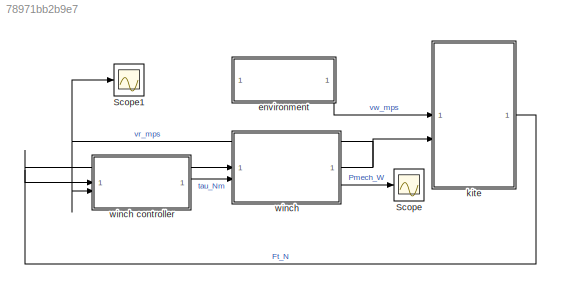
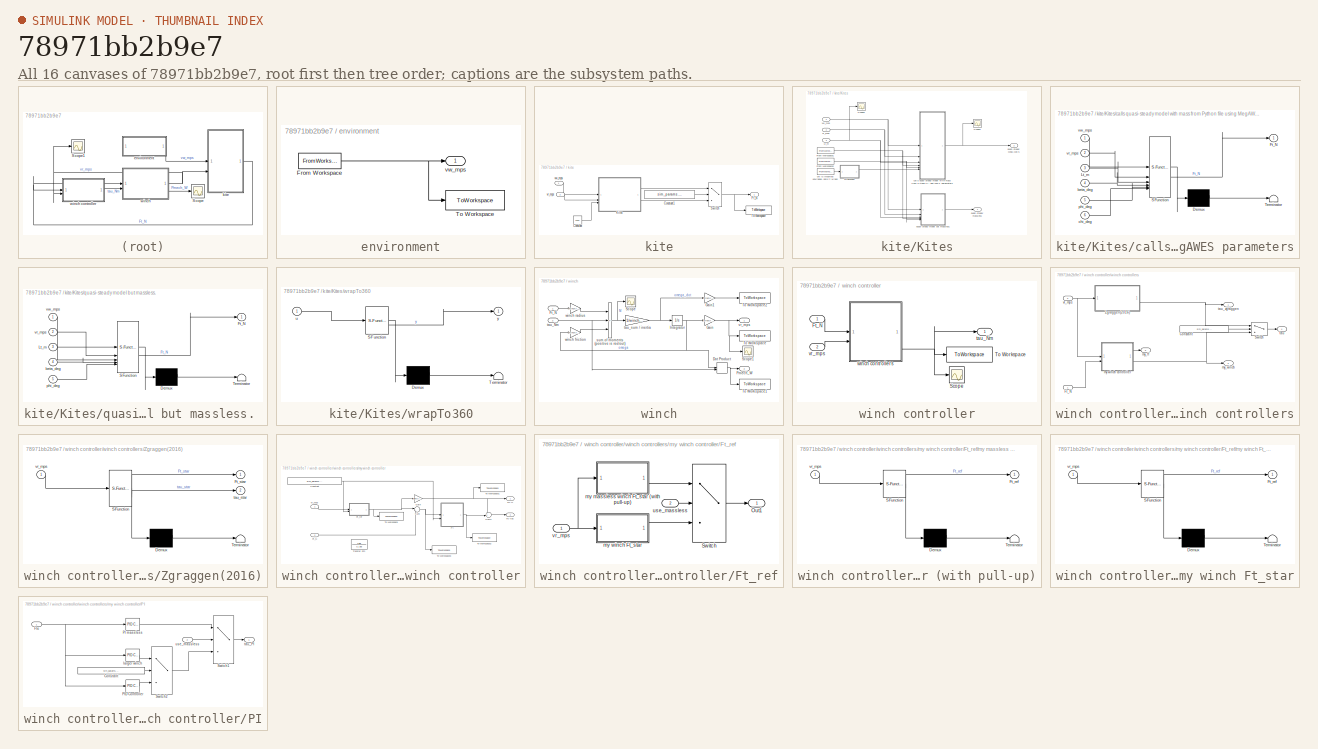
[diagram: thumbnail index - all 16 canvases of the model, root first then tree order]
MODEL slx_78971bb2b9e7
KIND model
CONFIG AbsTol = auto
CONFIG EnableMultiTasking = off
CONFIG FixedStep = auto
CONFIG MaxStep = auto
CONFIG MinStep = auto
CONFIG RelTol = 1e-4
CONFIG SampleTimeConstraint = Unconstrained
CONFIG SolverName = ode15s
CONFIG StartTime = 0.0
CONFIG StopTime = sim_params.t_end
BLOCK [Scope] Scope
  Floating = off
  NumInputPorts = 1
  ScopeSpecificationString = Simulink.scopes.TimeScopeBlockCfg('CurrentConfiguration', extmgr.ConfigurationSet(extmgr.Configuration('Core','General UI',true),extmgr.Configuration('Core','Source UI',true),extmgr.Configuration('Sources','WiredSimulink',true,'DataLoggingVariableName','ScopeData1'),extmgr.Configuration('Visuals','Time Domain',true),extmgr.Configuration('Tools','Plot Navigation',true),extmgr.Configuration('Tools',...<+40ch>
BLOCK [Scope] Scope1
  Floating = off
  NumInputPorts = 1
  ScopeSpecificationString = Simulink.scopes.TimeScopeBlockCfg('CurrentConfiguration', extmgr.ConfigurationSet(extmgr.Configuration('Core','General UI',true),extmgr.Configuration('Core','Source UI',true),extmgr.Configuration('Sources','WiredSimulink',true,'DataLoggingVariableName','ScopeData5'),extmgr.Configuration('Visuals','Time Domain',true,'SerializedDisplays',{struct('MinYLimReal','-8.84769','MaxYLimReal','4.62923','YLab...<+1409ch>
BLOCK [SubSystem] environment
BLOCK [FromWorkspace] environment/From Workspace
  VariableName = signals.vw_mps
BLOCK [ToWorkspace] environment/To Workspace
  FixptAsFi = on
  MaxDataPoints = inf
  SampleTime = -1
  SaveFormat = Timeseries
  VariableName = vw_mps
BLOCK [Outport] environment/vw_mps
BLOCK [SubSystem] kite
BLOCK [Constant] kite/Constant
  Value = 1000
BLOCK [Constant] kite/Constant1
  Value = sim_params.use_massless_kitemodel
BLOCK [Outport] kite/Ft_N
BLOCK [SubSystem] kite/Kites
BLOCK [FromWorkspace] kite/Kites/From Workspace1
  VariableName = signals.beta_deg
BLOCK [FromWorkspace] kite/Kites/From Workspace2
  VariableName = signals.phi_deg
BLOCK [Inport] kite/Kites/Lt_m
  Port = 3
BLOCK [Scope] kite/Kites/Scope1
  Floating = off
  NumInputPorts = 1
  ScopeSpecificationString = Simulink.scopes.TimeScopeBlockCfg('CurrentConfiguration', extmgr.ConfigurationSet(extmgr.Configuration('Core','General UI',true),extmgr.Configuration('Core','Source UI',true),extmgr.Configuration('Sources','WiredSimulink',true,'DataLoggingVariableName','ScopeData3'),extmgr.Configuration('Visuals','Time Domain',true,'SerializedDisplays',{struct('MinYLimReal','-136281.0117','MaxYLimReal','2936487.85...<+1549ch>
BLOCK [Scope] kite/Kites/Scope2
  Floating = off
  NumInputPorts = 1
  ScopeSpecificationString = Simulink.scopes.TimeScopeBlockCfg('CurrentConfiguration', extmgr.ConfigurationSet(extmgr.Configuration('Core','General UI',true),extmgr.Configuration('Core','Source UI',true),extmgr.Configuration('Sources','WiredSimulink',true,'DataLoggingVariableName','ScopeData4'),extmgr.Configuration('Visuals','Time Domain',true,'SerializedDisplays',{struct('MinYLimReal','996.42775','MaxYLimReal','1032.15021','...<+1425ch>
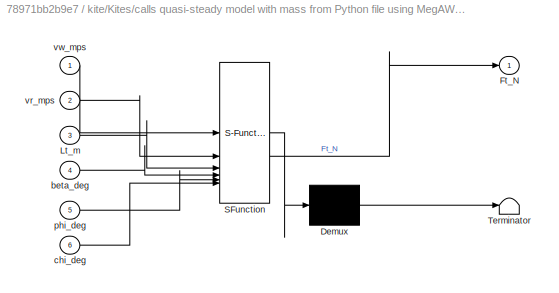
BLOCK [SubSystem] kite/Kites/calls quasi-steady model with mass from Python file using MegAWES parameters
  ErrorFcn = Stateflow.Translate.translate
  LibrarySourceBlock = simulink/User-Defined\nFunctions/MATLAB Function
  PermitHierarchicalResolution = ExplicitOnly
  SFBlockType = MATLAB Function
  TreatAsAtomicUnit = on
BLOCK [Demux] kite/Kites/calls quasi-steady model with mass from Python file using MegAWES parameters/ Demux 
  Outputs = 1
BLOCK [S-Function] kite/Kites/calls quasi-steady model with mass from Python file using MegAWES parameters/ SFunction 
  EnableBusSupport = on
  FunctionName = sf_sfun
  PortCounts = [6 2]
  SFcnIsStateOwnerBlock = off
  SFunctionDeploymentMode = off
  Tag = Stateflow S-Function 3
BLOCK [Terminator] kite/Kites/calls quasi-steady model with mass from Python file using MegAWES parameters/ Terminator 
BLOCK [Outport] kite/Kites/calls quasi-steady model with mass from Python file using MegAWES parameters/Ft_N
BLOCK [Inport] kite/Kites/calls quasi-steady model with mass from Python file using MegAWES parameters/Lt_m
  Port = 3
BLOCK [Inport] kite/Kites/calls quasi-steady model with mass from Python file using MegAWES parameters/beta_deg
  Port = 4
BLOCK [Inport] kite/Kites/calls quasi-steady model with mass from Python file using MegAWES parameters/chi_deg
  Port = 6
BLOCK [Inport] kite/Kites/calls quasi-steady model with mass from Python file using MegAWES parameters/phi_deg
  Port = 5
BLOCK [Inport] kite/Kites/calls quasi-steady model with mass from Python file using MegAWES parameters/vr_mps
  Port = 2
BLOCK [Inport] kite/Kites/calls quasi-steady model with mass from Python file using MegAWES parameters/vw_mps
BLOCK [FromWorkspace] kite/Kites/chi is imported unwrapped so that interpolation doesn't interpolate between the points where it wraps
  VariableName = signals.chi_unwrapped_deg
BLOCK [Outport] kite/Kites/quasi-steady MegAWES
  Port = 2
BLOCK [Outport] kite/Kites/quasi-steady massless
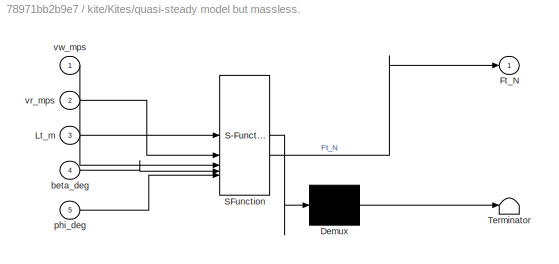
BLOCK [SubSystem] kite/Kites/quasi-steady model but massless. 
  ErrorFcn = Stateflow.Translate.translate
  LibrarySourceBlock = simulink/User-Defined\nFunctions/MATLAB Function
  PermitHierarchicalResolution = ExplicitOnly
  SFBlockType = MATLAB Function
  TreatAsAtomicUnit = on
BLOCK [Demux] kite/Kites/quasi-steady model but massless. / Demux 
  Outputs = 1
BLOCK [S-Function] kite/Kites/quasi-steady model but massless. / SFunction 
  EnableBusSupport = on
  FunctionName = sf_sfun
  Parameters = environment,kite,tether
  PortCounts = [5 2]
  SFcnIsStateOwnerBlock = off
  SFunctionDeploymentMode = off
  Tag = Stateflow S-Function 1
BLOCK [Terminator] kite/Kites/quasi-steady model but massless. / Terminator 
BLOCK [Outport] kite/Kites/quasi-steady model but massless. /Ft_N
BLOCK [Inport] kite/Kites/quasi-steady model but massless. /Lt_m
  Port = 3
BLOCK [Inport] kite/Kites/quasi-steady model but massless. /beta_deg
  Port = 4
BLOCK [Inport] kite/Kites/quasi-steady model but massless. /phi_deg
  Port = 5
BLOCK [Inport] kite/Kites/quasi-steady model but massless. /vr_mps
  Port = 2
BLOCK [Inport] kite/Kites/quasi-steady model but massless. /vw_mps
BLOCK [Inport] kite/Kites/vr_mps
  Port = 2
BLOCK [Inport] kite/Kites/vw_mps
BLOCK [SubSystem] kite/Kites/wrapTo360
  ErrorFcn = Stateflow.Translate.translate
  LibrarySourceBlock = simulink/User-Defined\nFunctions/MATLAB Function
  PermitHierarchicalResolution = ExplicitOnly
  SFBlockType = MATLAB Function
  TreatAsAtomicUnit = on
BLOCK [Demux] kite/Kites/wrapTo360/ Demux 
  Outputs = 1
BLOCK [S-Function] kite/Kites/wrapTo360/ SFunction 
  EnableBusSupport = on
  FunctionName = sf_sfun
  PortCounts = [1 2]
  SFcnIsStateOwnerBlock = off
  SFunctionDeploymentMode = off
  Tag = Stateflow S-Function 5
BLOCK [Terminator] kite/Kites/wrapTo360/ Terminator 
BLOCK [Inport] kite/Kites/wrapTo360/u
BLOCK [Outport] kite/Kites/wrapTo360/y
BLOCK [Switch] kite/Switch
  Criteria = u2 > Threshold
  InputSameDT = off
  SaturateOnIntegerOverflow = off
BLOCK [ToWorkspace] kite/To Workspace
  FixptAsFi = on
  MaxDataPoints = inf
  SampleTime = -1
  SaveFormat = Timeseries
  VariableName = Ft_N
BLOCK [Inport] kite/vr_mps
  Port = 2
BLOCK [Inport] kite/vw_mps
BLOCK [SubSystem] winch
BLOCK [SubSystem] winch controller
BLOCK [Inport] winch controller/Ft_N
BLOCK [Scope] winch controller/Scope
  Floating = off
  NumInputPorts = 1
  ScopeSpecificationString = Simulink.scopes.TimeScopeBlockCfg('CurrentConfiguration', extmgr.ConfigurationSet(extmgr.Configuration('Core','General UI',true),extmgr.Configuration('Core','Source UI',true),extmgr.Configuration('Sources','WiredSimulink',true,'DataLoggingVariableName','ScopeData7'),extmgr.Configuration('Visuals','Time Domain',true,'SerializedDisplays',{struct('MinYLimReal','-777786.06808','MaxYLimReal','7000074.6...<+1464ch>
BLOCK [ToWorkspace] winch controller/To Workspace
  FixptAsFi = on
  MaxDataPoints = inf
  SampleTime = -1
  SaveFormat = Timeseries
  VariableName = tau_Nm
BLOCK [Outport] winch controller/tau_Nm
BLOCK [Inport] winch controller/vr_mps
  Port = 2
BLOCK [SubSystem] winch controller/winch controllers
BLOCK [Constant] winch controller/winch controllers/Constant
  Value = sim_params.use_zgraggen
BLOCK [Inport] winch controller/winch controllers/Ft_N
BLOCK [Switch] winch controller/winch controllers/Switch
  Criteria = u2 > Threshold
  InputSameDT = off
  SaturateOnIntegerOverflow = off
BLOCK [SubSystem] winch controller/winch controllers/Zgraggen(2016)
  ErrorFcn = Stateflow.Translate.translate
  PermitHierarchicalResolution = ExplicitOnly
  SFBlockType = MATLAB Function
  TreatAsAtomicUnit = on
BLOCK [Demux] winch controller/winch controllers/Zgraggen(2016)/ Demux 
  Outputs = 1
BLOCK [S-Function] winch controller/winch controllers/Zgraggen(2016)/ SFunction 
  EnableBusSupport = on
  FunctionName = sf_sfun
  Parameters = environment,kite,tether,winch
  PortCounts = [1 3]
  SFcnIsStateOwnerBlock = off
  SFunctionDeploymentMode = off
  Tag = Stateflow S-Function 2
BLOCK [Terminator] winch controller/winch controllers/Zgraggen(2016)/ Terminator 
BLOCK [Outport] winch controller/winch controllers/Zgraggen(2016)/Ft_star
BLOCK [Outport] winch controller/winch controllers/Zgraggen(2016)/tau_star
  Port = 2
BLOCK [Inport] winch controller/winch controllers/Zgraggen(2016)/vr_mps
BLOCK [SubSystem] winch controller/winch controllers/my winch controller
BLOCK [Constant] winch controller/winch controllers/my winch controller/Constant
  Value = sim_params.use_massless_controller
BLOCK [Inport] winch controller/winch controllers/my winch controller/Ft_N
  Port = 2
BLOCK [SubSystem] winch controller/winch controllers/my winch controller/Ft_ref
BLOCK [Outport] winch controller/winch controllers/my winch controller/Ft_ref/Out1
BLOCK [Switch] winch controller/winch controllers/my winch controller/Ft_ref/Switch
  Criteria = u2 > Threshold
  InputSameDT = off
  SaturateOnIntegerOverflow = off
BLOCK [SubSystem] winch controller/winch controllers/my winch controller/Ft_ref/my massless winch Ft_star (with pull-up)
  ErrorFcn = Stateflow.Translate.translate
  LibrarySourceBlock = simulink/User-Defined\nFunctions/MATLAB Function
  PermitHierarchicalResolution = ExplicitOnly
  SFBlockType = MATLAB Function
  TreatAsAtomicUnit = on
BLOCK [Demux] winch controller/winch controllers/my winch controller/Ft_ref/my massless winch Ft_star (with pull-up)/ Demux 
  Outputs = 1
BLOCK [S-Function] winch controller/winch controllers/my winch controller/Ft_ref/my massless winch Ft_star (with pull-up)/ SFunction 
  EnableBusSupport = on
  FunctionName = sf_sfun
  Parameters = environment,kite,tether
  PortCounts = [1 2]
  SFcnIsStateOwnerBlock = off
  SFunctionDeploymentMode = off
  Tag = Stateflow S-Function 6
BLOCK [Terminator] winch controller/winch controllers/my winch controller/Ft_ref/my massless winch Ft_star (with pull-up)/ Terminator 
BLOCK [Outport] winch controller/winch controllers/my winch controller/Ft_ref/my massless winch Ft_star (with pull-up)/Ft_ref
BLOCK [Inport] winch controller/winch controllers/my winch controller/Ft_ref/my massless winch Ft_star (with pull-up)/vr_mps
BLOCK [SubSystem] winch controller/winch controllers/my winch controller/Ft_ref/my winch Ft_star
  ErrorFcn = Stateflow.Translate.translate
  LibrarySourceBlock = simulink/User-Defined\nFunctions/MATLAB Function
  PermitHierarchicalResolution = ExplicitOnly
  SFBlockType = MATLAB Function
  TreatAsAtomicUnit = on
BLOCK [Demux] winch controller/winch controllers/my winch controller/Ft_ref/my winch Ft_star/ Demux 
  Outputs = 1
BLOCK [S-Function] winch controller/winch controllers/my winch controller/Ft_ref/my winch Ft_star/ SFunction 
  EnableBusSupport = on
  FunctionName = sf_sfun
  PortCounts = [1 2]
  SFcnIsStateOwnerBlock = off
  SFunctionDeploymentMode = off
  Tag = Stateflow S-Function 4
BLOCK [Terminator] winch controller/winch controllers/my winch controller/Ft_ref/my winch Ft_star/ Terminator 
BLOCK [Outport] winch controller/winch controllers/my winch controller/Ft_ref/my winch Ft_star/Ft_ref
BLOCK [Inport] winch controller/winch controllers/my winch controller/Ft_ref/my winch Ft_star/vr_mps
BLOCK [Inport] winch controller/winch controllers/my winch controller/Ft_ref/use_massless
  Port = 2
BLOCK [Inport] winch controller/winch controllers/my winch controller/Ft_ref/vr_mps
BLOCK [Gain] winch controller/winch controllers/my winch controller/Gain
  Gain = winch.r_m
BLOCK [SubSystem] winch controller/winch controllers/my winch controller/PI
BLOCK [Constant] winch controller/winch controllers/my winch controller/PI/Constant
  Value = sim_params.use_larger_winch_PI
BLOCK [Inport] winch controller/winch controllers/my winch controller/PI/Fte
BLOCK [Reference] winch controller/winch controllers/my winch controller/PI/PI massless  REF=slpidlib/PID Controller
  LibrarySourceBlock = simulink/Continuous/PID Controller
  SourceBlock = slpidlib/PID Controller
  SourceType = PID 1dof
BLOCK [Reference] winch controller/winch controllers/my winch controller/PI/PID Controller  REF=slpidlib/PID Controller
  LibrarySourceBlock = simulink/Continuous/PID Controller
  SourceBlock = slpidlib/PID Controller
  SourceType = PID 1dof
BLOCK [Switch] winch controller/winch controllers/my winch controller/PI/Switch1
  Criteria = u2 > Threshold
  InputSameDT = off
  SaturateOnIntegerOverflow = off
BLOCK [Switch] winch controller/winch controllers/my winch controller/PI/Switch2
  Criteria = u2 > Threshold
  InputSameDT = off
  SaturateOnIntegerOverflow = off
BLOCK [Reference] winch controller/winch controllers/my winch controller/PI/larger winch  REF=slpidlib/PID Controller
  LibrarySourceBlock = simulink/Continuous/PID Controller
  SourceBlock = slpidlib/PID Controller
  SourceType = PID 1dof
BLOCK [Outport] winch controller/winch controllers/my winch controller/PI/tau_PI
BLOCK [Inport] winch controller/winch controllers/my winch controller/PI/use_massless
  Port = 2
BLOCK [Sum] winch controller/winch controllers/my winch controller/Sum
  Inputs = |+-
BLOCK [Sum] winch controller/winch controllers/my winch controller/Sum1
  Inputs = ++|
BLOCK [ToWorkspace] winch controller/winch controllers/my winch controller/To Workspace
  FixptAsFi = on
  MaxDataPoints = inf
  SampleTime = -1
  SaveFormat = Timeseries
  VariableName = Ft_ref_N
BLOCK [ToWorkspace] winch controller/winch controllers/my winch controller/To Workspace1
  FixptAsFi = on
  MaxDataPoints = inf
  SampleTime = -1
  SaveFormat = Timeseries
  VariableName = tau_ff_Nm
BLOCK [ToWorkspace] winch controller/winch controllers/my winch controller/To Workspace2
  FixptAsFi = on
  MaxDataPoints = inf
  SampleTime = -1
  SaveFormat = Timeseries
  VariableName = tau_PI_Nm
BLOCK [ToWorkspace] winch controller/winch controllers/my winch controller/To Workspace3
  FixptAsFi = on
  MaxDataPoints = inf
  SampleTime = -1
  SaveFormat = Timeseries
  VariableName = Fte_N
BLOCK [TransferFcn] winch controller/winch controllers/my winch controller/Transfer Fcn
  Denominator = [1 30]
  Numerator = [30]
BLOCK [Outport] winch controller/winch controllers/my winch controller/my ff
BLOCK [Outport] winch controller/winch controllers/my winch controller/my tau
  Port = 2
BLOCK [Inport] winch controller/winch controllers/my winch controller/vr_mps
BLOCK [Outport] winch controller/winch controllers/my_ff
  Port = 3
BLOCK [Outport] winch controller/winch controllers/my_winch
  Port = 2
BLOCK [Outport] winch controller/winch controllers/tau
  Port = 4
BLOCK [Outport] winch controller/winch controllers/tau_zgraggen
BLOCK [Inport] winch controller/winch controllers/vr_mps
  Port = 2
BLOCK [DotProduct] winch/Dot Product
  OutDataTypeStr = Inherit: Inherit via internal rule
BLOCK [Inport] winch/Ft_N
BLOCK [Gain] winch/Gain
  Gain = winch.r_m
BLOCK [Gain] winch/Gain1
  Gain = winch.r_m
BLOCK [Integrator] winch/Integrator
  InitialCondition = init.winch.w_radps;
BLOCK [Outport] winch/Pmech_W
  Port = 2
BLOCK [Scope] winch/Scope
  Floating = off
  NumInputPorts = 1
  ScopeSpecificationString = Simulink.scopes.TimeScopeBlockCfg('CurrentConfiguration', extmgr.ConfigurationSet(extmgr.Configuration('Core','General UI',true),extmgr.Configuration('Core','Source UI',true),extmgr.Configuration('Sources','WiredSimulink',true),extmgr.Configuration('Visuals','Time Domain',true,'SerializedDisplays',{struct('MinYLimReal','-115279.15006','MaxYLimReal','102731.91239','YLabelReal','','MinYLimMag','    ...<+1441ch>
BLOCK [Scope] winch/Scope1
  Floating = off
  NumInputPorts = 1
  ScopeSpecificationString = Simulink.scopes.TimeScopeBlockCfg('CurrentConfiguration', extmgr.ConfigurationSet(extmgr.Configuration('Core','General UI',true),extmgr.Configuration('Core','Source UI',true),extmgr.Configuration('Sources','WiredSimulink',true,'DataLoggingVariableName','ScopeData1'),extmgr.Configuration('Visuals','Time Domain',true,'SerializedDisplays',{struct('MinYLimReal','-1.14087','MaxYLimReal','10.26787','YLa...<+1400ch>
BLOCK [ToWorkspace] winch/To Workspace
  FixptAsFi = on
  MaxDataPoints = inf
  SampleTime = -1
  SaveFormat = Timeseries
  VariableName = vr_mps
BLOCK [ToWorkspace] winch/To Workspace1
  FixptAsFi = on
  MaxDataPoints = inf
  SampleTime = -1
  SaveFormat = Timeseries
  VariableName = Pmech_W
BLOCK [ToWorkspace] winch/To Workspace2
  FixptAsFi = on
  MaxDataPoints = inf
  SampleTime = -1
  SaveFormat = Timeseries
  VariableName = ar_mps2
BLOCK [Sum] winch/sum of moments (positive is reelout)
  IconShape = rectangular
  Inputs = +--
BLOCK [Inport] winch/tau_Nm
  Port = 2
BLOCK [Gain] winch/tau_sum // inertia
  Gain = 1/winch.J_kgm2
BLOCK [Outport] winch/vr_mps
BLOCK [Gain] winch/winch friction
  Gain = winch.friction
BLOCK [Gain] winch/winch radius
  Gain = winch.r_m
NET environment/From Workspace:1 -> environment/To Workspace:1, environment/vw_mps:1
LINE environment:1 -> kite:1
LINE kite/Constant1:1 -> kite/Switch:2
LINE kite/Constant:1 -> kite/Kites:3
NET kite/Kites/From Workspace1:1 -> kite/Kites/calls quasi-steady model with mass from Python file using MegAWES parameters:4, kite/Kites/quasi-steady model but massless. :4
NET kite/Kites/From Workspace2:1 -> kite/Kites/calls quasi-steady model with mass from Python file using MegAWES parameters:5, kite/Kites/quasi-steady model but massless. :5
NET kite/Kites/Lt_m:1 -> kite/Kites/Scope2:1, kite/Kites/calls quasi-steady model with mass from Python file using MegAWES parameters:3, kite/Kites/quasi-steady model but massless. :3
NET kite/Kites/calls quasi-steady model with mass from Python file using MegAWES parameters:1 -> kite/Kites/Scope1:1, kite/Kites/quasi-steady MegAWES:1
LINE kite/Kites/chi is imported unwrapped so that interpolation doesn't interpolate between the points where it wraps:1 -> kite/Kites/wrapTo360:1
LINE kite/Kites/quasi-steady model but massless. :1 -> kite/Kites/quasi-steady massless:1
NET kite/Kites/vr_mps:1 -> kite/Kites/calls quasi-steady model with mass from Python file using MegAWES parameters:2, kite/Kites/quasi-steady model but massless. :2
NET kite/Kites/vw_mps:1 -> kite/Kites/calls quasi-steady model with mass from Python file using MegAWES parameters:1, kite/Kites/quasi-steady model but massless. :1
LINE kite/Kites/wrapTo360:1 -> kite/Kites/calls quasi-steady model with mass from Python file using MegAWES parameters:6
LINE kite/Kites:1 -> kite/Switch:1
LINE kite/Kites:2 -> kite/Switch:3
NET kite/Switch:1 -> kite/Ft_N:1, kite/To Workspace:1
LINE kite/vr_mps:1 -> kite/Kites:2
LINE kite/vw_mps:1 -> kite/Kites:1
NET kite:1 -> winch controller:1, winch:1
LINE winch controller/Ft_N:1 -> winch controller/winch controllers:1
LINE winch controller/vr_mps:1 -> winch controller/winch controllers:2
LINE winch controller/winch controllers/Constant:1 -> winch controller/winch controllers/Switch:2
LINE winch controller/winch controllers/Ft_N:1 -> winch controller/winch controllers/my winch controller:2
LINE winch controller/winch controllers/Switch:1 -> winch controller/winch controllers/tau:1
NET winch controller/winch controllers/Zgraggen(2016):2 -> winch controller/winch controllers/Switch:1, winch controller/winch controllers/tau_zgraggen:1
NET winch controller/winch controllers/my winch controller/Constant:1 -> winch controller/winch controllers/my winch controller/Ft_ref:2, winch controller/winch controllers/my winch controller/PI:2
LINE winch controller/winch controllers/my winch controller/Ft_N:1 -> winch controller/winch controllers/my winch controller/Sum:2
LINE winch controller/winch controllers/my winch controller/Ft_ref/Switch:1 -> winch controller/winch controllers/my winch controller/Ft_ref/Out1:1
LINE winch controller/winch controllers/my winch controller/Ft_ref/my massless winch Ft_star (with pull-up):1 -> winch controller/winch controllers/my winch controller/Ft_ref/Switch:1
LINE winch controller/winch controllers/my winch controller/Ft_ref/my winch Ft_star:1 -> winch controller/winch controllers/my winch controller/Ft_ref/Switch:3
LINE winch controller/winch controllers/my winch controller/Ft_ref/use_massless:1 -> winch controller/winch controllers/my winch controller/Ft_ref/Switch:2
NET winch controller/winch controllers/my winch controller/Ft_ref/vr_mps:1 -> winch controller/winch controllers/my winch controller/Ft_ref/my massless winch Ft_star (with pull-up):1, winch controller/winch controllers/my winch controller/Ft_ref/my winch Ft_star:1
NET winch controller/winch controllers/my winch controller/Ft_ref:1 -> winch controller/winch controllers/my winch controller/Gain:1, winch controller/winch controllers/my winch controller/Sum:1, winch controller/winch controllers/my winch controller/To Workspace:1
NET winch controller/winch controllers/my winch controller/Gain:1 -> winch controller/winch controllers/my winch controller/Sum1:1, winch controller/winch controllers/my winch controller/To Workspace1:1, winch controller/winch controllers/my winch controller/my ff:1
LINE winch controller/winch controllers/my winch controller/PI/Constant:1 -> winch controller/winch controllers/my winch controller/PI/Switch2:2
NET winch controller/winch controllers/my winch controller/PI/Fte:1 -> winch controller/winch controllers/my winch controller/PI/PI massless:1, winch controller/winch controllers/my winch controller/PI/PID Controller:1, winch controller/winch controllers/my winch controller/PI/larger winch:1
LINE winch controller/winch controllers/my winch controller/PI/PI massless:1 -> winch controller/winch controllers/my winch controller/PI/Switch1:1
LINE winch controller/winch controllers/my winch controller/PI/PID Controller:1 -> winch controller/winch controllers/my winch controller/PI/Switch2:3
LINE winch controller/winch controllers/my winch controller/PI/Switch1:1 -> winch controller/winch controllers/my winch controller/PI/tau_PI:1
LINE winch controller/winch controllers/my winch controller/PI/Switch2:1 -> winch controller/winch controllers/my winch controller/PI/Switch1:3
LINE winch controller/winch controllers/my winch controller/PI/larger winch:1 -> winch controller/winch controllers/my winch controller/PI/Switch2:1
LINE winch controller/winch controllers/my winch controller/PI/use_massless:1 -> winch controller/winch controllers/my winch controller/PI/Switch1:2
NET winch controller/winch controllers/my winch controller/PI:1 -> winch controller/winch controllers/my winch controller/Sum1:2, winch controller/winch controllers/my winch controller/To Workspace2:1
LINE winch controller/winch controllers/my winch controller/Sum1:1 -> winch controller/winch controllers/my winch controller/my tau:1
NET winch controller/winch controllers/my winch controller/Sum:1 -> winch controller/winch controllers/my winch controller/PI:1, winch controller/winch controllers/my winch controller/To Workspace3:1
LINE winch controller/winch controllers/my winch controller/vr_mps:1 -> winch controller/winch controllers/my winch controller/Ft_ref:1
LINE winch controller/winch controllers/my winch controller:1 -> winch controller/winch controllers/my_ff:1
NET winch controller/winch controllers/my winch controller:2 -> winch controller/winch controllers/Switch:3, winch controller/winch controllers/my_winch:1
NET winch controller/winch controllers/vr_mps:1 -> winch controller/winch controllers/Zgraggen(2016):1, winch controller/winch controllers/my winch controller:1
NET winch controller/winch controllers:4 -> winch controller/Scope:1, winch controller/To Workspace:1, winch controller/tau_Nm:1
LINE winch controller:1 -> winch:2
NET winch/Dot Product:1 -> winch/Pmech_W:1, winch/To Workspace1:1
LINE winch/Ft_N:1 -> winch/winch radius:1
LINE winch/Gain1:1 -> winch/To Workspace2:1
NET winch/Gain:1 -> winch/Scope1:1, winch/To Workspace:1, winch/vr_mps:1
NET winch/Integrator:1 -> winch/Dot Product:1, winch/Gain:1, winch/winch friction:1
NET winch/sum of moments (positive is reelout):1 -> winch/Scope:1, winch/tau_sum // inertia:1
NET winch/tau_Nm:1 -> winch/Dot Product:2, winch/sum of moments (positive is reelout):2
NET winch/tau_sum // inertia:1 -> winch/Gain1:1, winch/Integrator:1
LINE winch/winch friction:1 -> winch/sum of moments (positive is reelout):3
LINE winch/winch radius:1 -> winch/sum of moments (positive is reelout):1
NET winch:1 -> Scope1:1, kite:2, winch controller:2
LINE winch:2 -> Scope:1
note: NET lines group one-source signal fan-out (src -> all destinations, sorted); 1:1 wires keep LINE
CHART kite/Kites/quasi-steady model but massless.  states=1 transitions=1
  STATE_LABEL 'eML_blk_kernel()'
  STATE_LABEL 'SCRIPT:\nfunction Ft_N = fnc(vw_mps, vr_mps, Lt_m, beta_deg, phi_deg, kite, environment, tether)\n\n% Using the massless quasi-steady model from vandervlught2019 using the\n% effective lift-to-drag (E) ratio, which takes the tether length into\n% account.\n% Intermediate results.\nq = 0.5 * environment.rho_kgpm3 * vw_mps^2;\nE_eff = calc_E_eff(Lt_m, kite, tether);\nCR_eff = kite.CL * sqrt(1/E_eff^2 + 1);\nf...<+123ch>'
CHART winch controller/winch controllers/Zgraggen(2016) states=1 transitions=1
  STATE_LABEL 'eML_blk_kernel()'
  STATE_LABEL 'SCRIPT:\nfunction [Ft_star, tau_star] = fcn(vr_mps, environment, winch, kite, tether)\n\n% Assume a tether length of 1000 m, just like the average condition of my\n% winch controller.\nLt_m = 1000;\n\n% From Zgraggen, which is optimal instantaneous power for massless kites\n% over beta and phi. So it neglects the retraction phase.\nE_eff = calc_E_eff(Lt_m, kite, tether);\nCR_eff = kite.CL * sqrt(1/E_eff^2 +...<+136ch>'
CHART kite/Kites/calls quasi-steady model
with mass from Python file
using MegAWES parameters states=1 transitions=1
  STATE_LABEL 'eML_blk_kernel()'
  STATE_LABEL "SCRIPT:\nfunction Ft_N = fcn(vw_mps, vr_mps, Lt_m, beta_deg, phi_deg, chi_deg)\n\n    % From: https://nl.mathworks.com/matlabcentral/answers/359575-how-to-run-a-python-code-on-simulink\n    Ft_N = 0;  % Has to be preassigned, otherwise Simulink throws an error\n    coder.extrinsic('py.qsm_wrapper_for_simulink.calc_Ft')  % Python functions have to be run extrinsically, meaning no C code generated\n    % ...<+228ch>"
CHART winch controller/winch controllers/my winch controller/Ft_ref/my winch Ft_star states=1 transitions=1
  STATE_LABEL 'eML_blk_kernel()'
  STATE_LABEL "SCRIPT:\nfunction Ft_ref  = fcn(vr_mps)\n\ntheta = [187486.8, 7784.0, 30865.2];\nFt_star = theta(1) + theta(2) * vr_mps + theta(3) * vr_mps^2;\n\n\n% Apply minimum tether force if ideal tether force is below it or when\n% we're reeling in during the traction phase.\nFt_min = 0.5e6;\nFt_ref = max(Ft_star, Ft_min);\nif vr_mps<0\n    Ft_ref = Ft_min;\nend\n"
CHART kite/Kites/wrapTo360 states=1 transitions=1
  STATE_LABEL 'eML_blk_kernel()'
  STATE_LABEL 'SCRIPT:\nfunction y = fcn(u)\n\ny = mod(u, 360);\n'
CHART winch controller/winch controllers/my winch controller/Ft_ref/my massless winch Ft_star
(with pull-up) states=1 transitions=1
  STATE_LABEL 'eML_blk_kernel()'
  STATE_LABEL 'SCRIPT:\nfunction Ft_ref  = fcn(vr_mps, kite, environment, tether)\n\n% Assume a tether length of 1000 m, just like the average condition of my\n% winch controller.\nLt_m = 1000;\n\n% From Zgraggen, which is optimal instantaneous power for massless kites\n% over beta and phi. So it neglects the retraction phase.\nE_eff = calc_E_eff(Lt_m, kite, tether);\nCR_eff = kite.CL * sqrt(1/E_eff^2 + 1);\nC = 0.5 * envi...<+244ch>'
CHART  states=0 transitions=0
CHART  states=0 transitions=0
CHART  states=0 transitions=0
CHART  states=0 transitions=0
CHART  states=0 transitions=0
CHART  states=0 transitions=0
